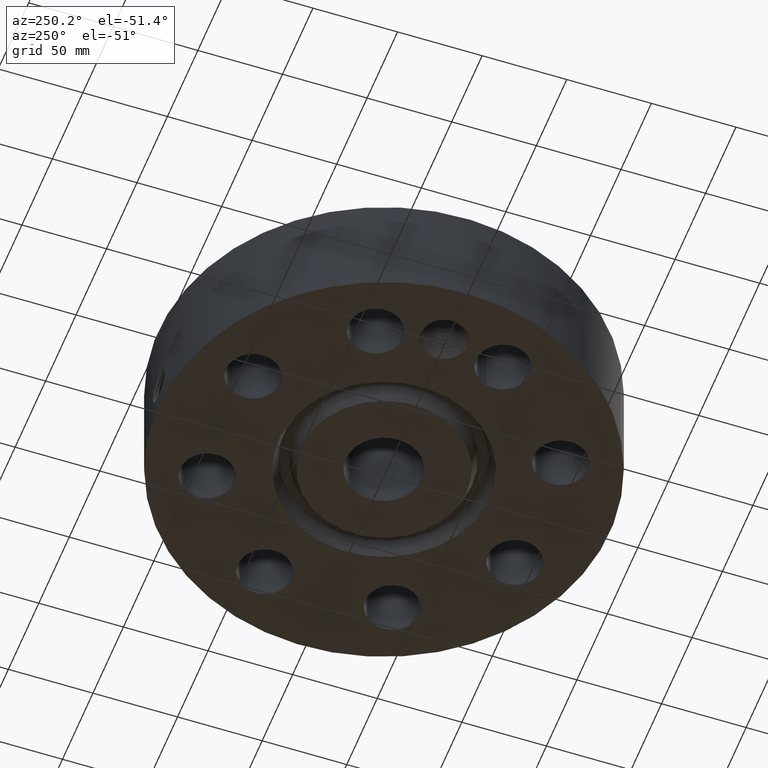
[diagram: clean part render]
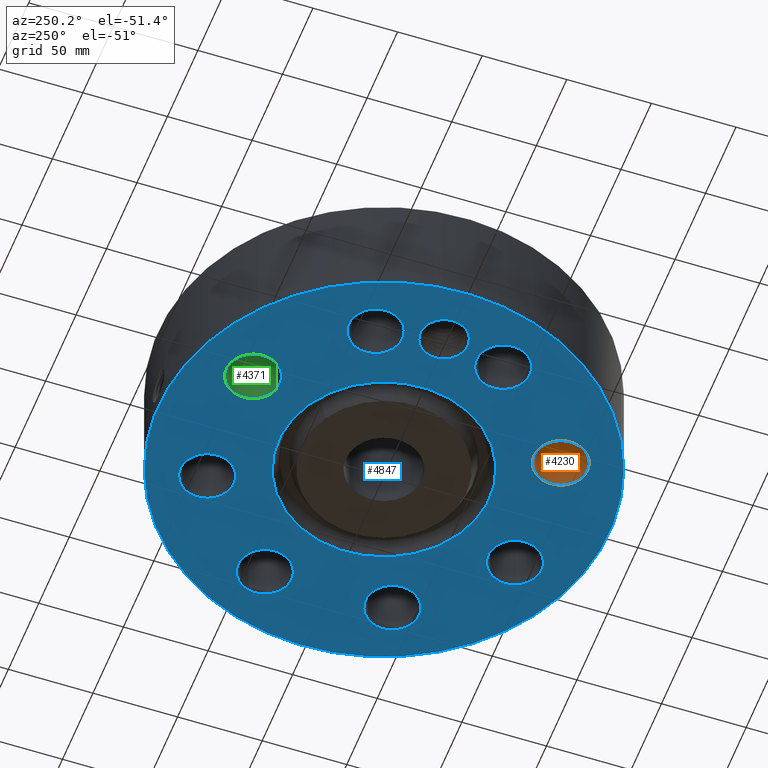
[diagram: same view with three faces highlighted in distinct colors, each labeled with its STEP entity id]
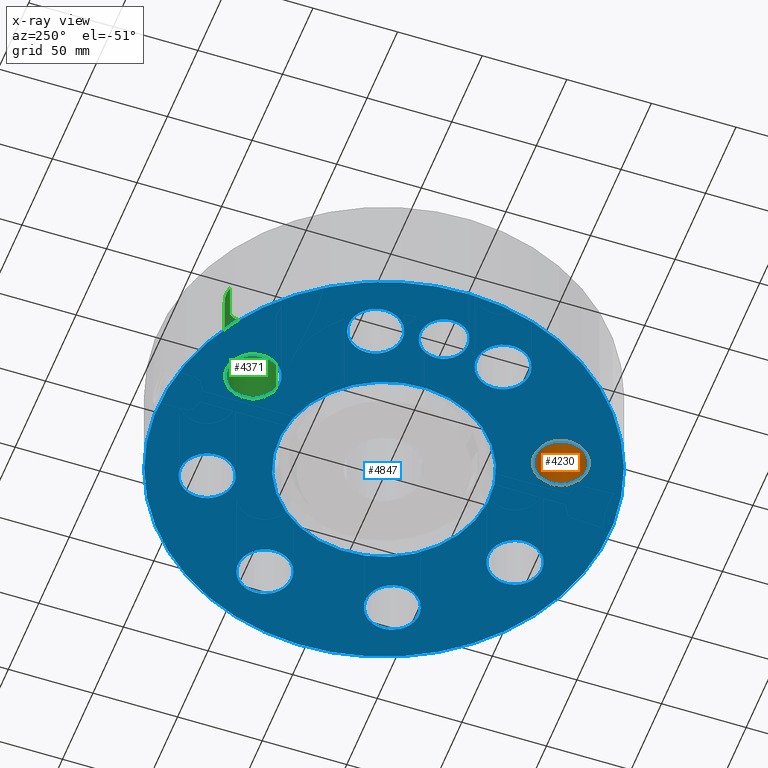
[diagram: x-ray of the same camera — body ghosted, the three highlighted faces saturated]
A machine part, auxiliary view with three faces highlighted in distinct colors.
The next image is the same camera in x-ray (body ghosted, the three faces saturated) — at least one of them is partly hidden behind the body in this view.
Their STEP definitions:

[orange] entity #4230 — the highlighted cylindrical surface (edge-blend (fillet) strip) has radius 15.875 mm, axis along (0, -0, -1).
#3039=AXIS2_PLACEMENT_3D('Circle Axis2P3D',#3037,#3038,$) ;
#4203=AXIS2_PLACEMENT_3D('Cylinder Axis2P3D',#4200,#4201,#4202) ;
#4214=AXIS2_PLACEMENT_3D('Circle Axis2P3D',#4212,#4213,$) ;
#3032=CARTESIAN_POINT('Vertex',(-1.78253926205,-4.12852228968,2.62500000001)) ;
#3034=CARTESIAN_POINT('Vertex',(-1.18325733879,-3.03154408731,2.62500000001)) ;
#3037=CARTESIAN_POINT('Axis2P3D Location',(-1.48289830042,-3.5800331885,2.62500000001)) ;
#4200=CARTESIAN_POINT('Axis2P3D Location',(-1.48289830042,-3.5800331885,2.62106299214)) ;
#4205=CARTESIAN_POINT('Line Origine',(-1.18325733879,-3.03154408731,1.31250000001)) ;
#4209=CARTESIAN_POINT('Vertex',(-1.18325733879,-3.03154408731,0.)) ;
#4212=CARTESIAN_POINT('Axis2P3D Location',(-1.48289830042,-3.5800331885,0.)) ;
#4216=CARTESIAN_POINT('Vertex',(-1.78253926205,-4.12852228968,0.)) ;
#4219=CARTESIAN_POINT('Line Origine',(-1.78253926205,-4.12852228968,1.31250000001)) ;
#3038=DIRECTION('Axis2P3D Direction',(0.,0.,-0.0393700787402)) ;
#4201=DIRECTION('Axis2P3D Direction',(0.,-0.,-0.0393700787402)) ;
#4202=DIRECTION('Axis2P3D XDirection',(-0.0188750212049,-0.0345504945626,0.)) ;
#4206=DIRECTION('Vector Direction',(0.,0.,-0.0393700787402)) ;
#4213=DIRECTION('Axis2P3D Direction',(0.,-0.,-0.0393700787402)) ;
#4220=DIRECTION('Vector Direction',(0.,0.,-0.0393700787402)) ;
#4207=VECTOR('Line Direction',#4206,0.0393700787402) ;
#4221=VECTOR('Line Direction',#4220,0.0393700787402) ;
#4225=ORIENTED_EDGE('',*,*,#4211,.F.) ;
#4226=ORIENTED_EDGE('',*,*,#4218,.T.) ;
#4227=ORIENTED_EDGE('',*,*,#4223,.T.) ;
#4228=ORIENTED_EDGE('',*,*,#3041,.F.) ;
#4230=ADVANCED_FACE('PartBody',(#4229),#4204,.F.) ;
#3040=CIRCLE('generated circle',#3039,0.625000000002) ;
#4215=CIRCLE('generated circle',#4214,0.625000000002) ;
#4204=CYLINDRICAL_SURFACE('generated cylinder',#4203,0.625000000002) ;
#3041=EDGE_CURVE('',#3035,#3033,#3040,.T.) ;
#4211=EDGE_CURVE('',#4210,#3035,#4208,.F.) ;
#4218=EDGE_CURVE('',#4210,#4217,#4215,.T.) ;
#4223=EDGE_CURVE('',#4217,#3033,#4222,.F.) ;
#4224=EDGE_LOOP('',(#4225,#4226,#4227,#4228)) ;
#4229=FACE_OUTER_BOUND('',#4224,.T.) ;
#4208=LINE('Line',#4205,#4207) ;
#4222=LINE('Line',#4219,#4221) ;
#3033=VERTEX_POINT('',#3032) ;
#3035=VERTEX_POINT('',#3034) ;
#4210=VERTEX_POINT('',#4209) ;
#4217=VERTEX_POINT('',#4216) ;

[blue] entity #4847 — the highlighted planar face has unit normal (0, 0, -1).
#598=AXIS2_PLACEMENT_3D('Plane Axis2P3D',#595,#596,#597) ;
#3476=AXIS2_PLACEMENT_3D('Circle Axis2P3D',#3474,#3475,$) ;
#3502=AXIS2_PLACEMENT_3D('Circle Axis2P3D',#3500,#3501,$) ;
#3775=AXIS2_PLACEMENT_3D('Circle Axis2P3D',#3773,#3774,$) ;
#3887=AXIS2_PLACEMENT_3D('Circle Axis2P3D',#3885,#3886,$) ;
#4128=AXIS2_PLACEMENT_3D('Circle Axis2P3D',#4126,#4127,$) ;
#4147=AXIS2_PLACEMENT_3D('Circle Axis2P3D',#4145,#4146,$) ;
#4171=AXIS2_PLACEMENT_3D('Circle Axis2P3D',#4169,#4170,$) ;
#4190=AXIS2_PLACEMENT_3D('Circle Axis2P3D',#4188,#4189,$) ;
#4214=AXIS2_PLACEMENT_3D('Circle Axis2P3D',#4212,#4213,$) ;
#4233=AXIS2_PLACEMENT_3D('Circle Axis2P3D',#4231,#4232,$) ;
#4257=AXIS2_PLACEMENT_3D('Circle Axis2P3D',#4255,#4256,$) ;
#4276=AXIS2_PLACEMENT_3D('Circle Axis2P3D',#4274,#4275,$) ;
#4300=AXIS2_PLACEMENT_3D('Circle Axis2P3D',#4298,#4299,$) ;
#4319=AXIS2_PLACEMENT_3D('Circle Axis2P3D',#4317,#4318,$) ;
#4343=AXIS2_PLACEMENT_3D('Circle Axis2P3D',#4341,#4342,$) ;
#4362=AXIS2_PLACEMENT_3D('Circle Axis2P3D',#4360,#4361,$) ;
#4386=AXIS2_PLACEMENT_3D('Circle Axis2P3D',#4384,#4385,$) ;
#4405=AXIS2_PLACEMENT_3D('Circle Axis2P3D',#4403,#4404,$) ;
#4429=AXIS2_PLACEMENT_3D('Circle Axis2P3D',#4427,#4428,$) ;
#4448=AXIS2_PLACEMENT_3D('Circle Axis2P3D',#4446,#4447,$) ;
#4759=AXIS2_PLACEMENT_3D('Circle Axis2P3D',#4757,#4758,$) ;
#4768=AXIS2_PLACEMENT_3D('Circle Axis2P3D',#4766,#4767,$) ;
#4775=AXIS2_PLACEMENT_3D('Circle Axis2P3D',#4773,#4774,$) ;
#595=CARTESIAN_POINT('Axis2P3D Location',(0.,0.885500000004,0.)) ;
#3474=CARTESIAN_POINT('Axis2P3D Location',(0.,0.,0.)) ;
#3478=CARTESIAN_POINT('Vertex',(-1.1760308462,2.15271002433,0.)) ;
#3480=CARTESIAN_POINT('Vertex',(1.1760308462,-2.15271002433,0.)) ;
#3500=CARTESIAN_POINT('Axis2P3D Location',(0.,0.,0.)) ;
#3773=CARTESIAN_POINT('Axis2P3D Location',(0.,0.,5.59482469102E-016)) ;
#3777=CARTESIAN_POINT('Vertex',(-2.51698407768,-4.60730844994,5.59482469102E-016)) ;
#3779=CARTESIAN_POINT('Vertex',(2.51698407768,4.60730844994,5.59482469102E-016)) ;
#3885=CARTESIAN_POINT('Axis2P3D Location',(0.,0.,5.59482469102E-016)) ;
#4123=CARTESIAN_POINT('Vertex',(4.12852228968,-1.78253926205,0.)) ;
#4126=CARTESIAN_POINT('Axis2P3D Location',(3.5800331885,-1.48289830042,0.)) ;
#4130=CARTESIAN_POINT('Vertex',(3.03154408731,-1.18325733879,0.)) ;
#4145=CARTESIAN_POINT('Axis2P3D Location',(3.5800331885,-1.48289830042,0.)) ;
#4166=CARTESIAN_POINT('Vertex',(1.30693609346,-2.98031466975,0.)) ;
#4169=CARTESIAN_POINT('Axis2P3D Location',(1.48289830042,-3.5800331885,0.)) ;
#4173=CARTESIAN_POINT('Vertex',(1.65886050739,-4.17975170724,0.)) ;
#4188=CARTESIAN_POINT('Axis2P3D Location',(1.48289830042,-3.5800331885,0.)) ;
#4209=CARTESIAN_POINT('Vertex',(-1.18325733879,-3.03154408731,0.)) ;
#4212=CARTESIAN_POINT('Axis2P3D Location',(-1.48289830042,-3.5800331885,0.)) ;
#4216=CARTESIAN_POINT('Vertex',(-1.78253926205,-4.12852228968,0.)) ;
#4231=CARTESIAN_POINT('Axis2P3D Location',(-1.48289830042,-3.5800331885,0.)) ;
#4252=CARTESIAN_POINT('Vertex',(-2.98031466975,-1.30693609346,0.)) ;
#4255=CARTESIAN_POINT('Axis2P3D Location',(-3.5800331885,-1.48289830042,0.)) ;
#4259=CARTESIAN_POINT('Vertex',(-4.17975170724,-1.65886050739,0.)) ;
#4274=CARTESIAN_POINT('Axis2P3D Location',(-3.5800331885,-1.48289830042,0.)) ;
#4295=CARTESIAN_POINT('Vertex',(-3.03154408731,1.18325733879,0.)) ;
#4298=CARTESIAN_POINT('Axis2P3D Location',(-3.5800331885,1.48289830042,0.)) ;
#4302=CARTESIAN_POINT('Vertex',(-4.12852228968,1.78253926205,0.)) ;
#4317=CARTESIAN_POINT('Axis2P3D Location',(-3.5800331885,1.48289830042,0.)) ;
#4338=CARTESIAN_POINT('Vertex',(-1.30693609346,2.98031466975,0.)) ;
#4341=CARTESIAN_POINT('Axis2P3D Location',(-1.48289830042,3.5800331885,0.)) ;
#4345=CARTESIAN_POINT('Vertex',(-1.65886050739,4.17975170724,0.)) ;
#4360=CARTESIAN_POINT('Axis2P3D Location',(-1.48289830042,3.5800331885,0.)) ;
#4381=CARTESIAN_POINT('Vertex',(1.18325733879,3.03154408731,0.)) ;
#4384=CARTESIAN_POINT('Axis2P3D Location',(1.48289830042,3.5800331885,0.)) ;
#4388=CARTESIAN_POINT('Vertex',(1.78253926205,4.12852228968,0.)) ;
#4403=CARTESIAN_POINT('Axis2P3D Location',(1.48289830042,3.5800331885,0.)) ;
#4424=CARTESIAN_POINT('Vertex',(2.98031466975,1.30693609346,0.)) ;
#4427=CARTESIAN_POINT('Axis2P3D Location',(3.5800331885,1.48289830042,0.)) ;
#4431=CARTESIAN_POINT('Vertex',(4.17975170724,1.65886050739,0.)) ;
#4446=CARTESIAN_POINT('Axis2P3D Location',(3.5800331885,1.48289830042,0.)) ;
#4757=CARTESIAN_POINT('Axis2P3D Location',(-3.87500000002,0.,0.)) ;
#4761=CARTESIAN_POINT('Vertex',(-3.39039890934,-0.264738782418,0.)) ;
#4763=CARTESIAN_POINT('Vertex',(-4.03666048539,-0.528006370674,0.)) ;
#4766=CARTESIAN_POINT('Axis2P3D Location',(-3.87500000002,0.,0.)) ;
#4770=CARTESIAN_POINT('Vertex',(-4.35960109069,0.264738782418,0.)) ;
#4773=CARTESIAN_POINT('Axis2P3D Location',(-3.87500000002,0.,0.)) ;
#4777=CARTESIAN_POINT('Vertex',(-4.39054287411,-0.197839290774,0.)) ;
#4781=CARTESIAN_POINT('Control Point',(-4.25873893829,-0.411279715125,0.)) ;
#4782=CARTESIAN_POINT('Control Point',(-4.29447315292,-0.375134261766,0.)) ;
#4783=CARTESIAN_POINT('Control Point',(-4.32604231411,-0.335029333311,0.)) ;
#4784=CARTESIAN_POINT('Control Point',(-4.35285073847,-0.291588209153,0.)) ;
#4785=CARTESIAN_POINT('Control Point',(-4.37443908824,-0.245581511573,0.)) ;
#4786=CARTESIAN_POINT('Control Point',(-4.39054287411,-0.197839290774,0.)) ;
#4787=CARTESIAN_POINT('Vertex',(-4.25873893829,-0.411279715124,5.46369598733E-018)) ;
#4791=CARTESIAN_POINT('Control Point',(-4.25873893829,-0.411279715124,0.)) ;
#4792=CARTESIAN_POINT('Control Point',(-4.23660972527,-0.430316579456,0.)) ;
#4793=CARTESIAN_POINT('Control Point',(-4.21327048844,-0.447894499338,0.)) ;
#4794=CARTESIAN_POINT('Control Point',(-4.18884684207,-0.463908306157,0.)) ;
#4795=CARTESIAN_POINT('Control Point',(-4.14656980329,-0.487840484302,0.)) ;
#4796=CARTESIAN_POINT('Control Point',(-4.10209008496,-0.506985027487,0.)) ;
#4797=CARTESIAN_POINT('Control Point',(-4.08399184482,-0.513855414295,0.)) ;
#4798=CARTESIAN_POINT('Control Point',(-4.06358179872,-0.520600614838,0.)) ;
#4799=CARTESIAN_POINT('Control Point',(-4.04291081313,-0.526337305246,0.)) ;
#4800=CARTESIAN_POINT('Control Point',(-4.04082985076,-0.526903895452,0.)) ;
#4801=CARTESIAN_POINT('Control Point',(-4.03874638559,-0.527460255935,0.)) ;
#4802=CARTESIAN_POINT('Control Point',(-4.03666048539,-0.528006370674,0.)) ;
#596=DIRECTION('Axis2P3D Direction',(0.,0.,-0.0393700787402)) ;
#597=DIRECTION('Axis2P3D XDirection',(0.0393700787402,0.,0.)) ;
#3475=DIRECTION('Axis2P3D Direction',(0.,0.,-0.0393700787402)) ;
#3501=DIRECTION('Axis2P3D Direction',(0.,0.,-0.0393700787402)) ;
#3774=DIRECTION('Axis2P3D Direction',(0.,0.,-0.0393700787402)) ;
#3886=DIRECTION('Axis2P3D Direction',(0.,0.,-0.0393700787402)) ;
#4127=DIRECTION('Axis2P3D Direction',(0.,-0.,-0.0393700787402)) ;
#4146=DIRECTION('Axis2P3D Direction',(0.,-0.,-0.0393700787402)) ;
#4170=DIRECTION('Axis2P3D Direction',(0.,-0.,-0.0393700787402)) ;
#4189=DIRECTION('Axis2P3D Direction',(0.,-0.,-0.0393700787402)) ;
#4213=DIRECTION('Axis2P3D Direction',(0.,-0.,-0.0393700787402)) ;
#4232=DIRECTION('Axis2P3D Direction',(0.,-0.,-0.0393700787402)) ;
#4256=DIRECTION('Axis2P3D Direction',(-0.,0.,-0.0393700787402)) ;
#4275=DIRECTION('Axis2P3D Direction',(-0.,0.,-0.0393700787402)) ;
#4299=DIRECTION('Axis2P3D Direction',(-0.,0.,-0.0393700787402)) ;
#4318=DIRECTION('Axis2P3D Direction',(-0.,0.,-0.0393700787402)) ;
#4342=DIRECTION('Axis2P3D Direction',(0.,0.,-0.0393700787402)) ;
#4361=DIRECTION('Axis2P3D Direction',(0.,0.,-0.0393700787402)) ;
#4385=DIRECTION('Axis2P3D Direction',(0.,0.,-0.0393700787402)) ;
#4404=DIRECTION('Axis2P3D Direction',(0.,0.,-0.0393700787402)) ;
#4428=DIRECTION('Axis2P3D Direction',(0.,0.,-0.0393700787402)) ;
#4447=DIRECTION('Axis2P3D Direction',(0.,0.,-0.0393700787402)) ;
#4758=DIRECTION('Axis2P3D Direction',(0.,0.,-0.0393700787402)) ;
#4767=DIRECTION('Axis2P3D Direction',(0.,0.,-0.0393700787402)) ;
#4774=DIRECTION('Axis2P3D Direction',(0.,0.,-0.0393700787402)) ;
#4754=ORIENTED_EDGE('',*,*,#3781,.T.) ;
#4755=ORIENTED_EDGE('',*,*,#3889,.T.) ;
#4805=ORIENTED_EDGE('',*,*,#4765,.F.) ;
#4806=ORIENTED_EDGE('',*,*,#4772,.F.) ;
#4807=ORIENTED_EDGE('',*,*,#4779,.F.) ;
#4808=ORIENTED_EDGE('',*,*,#4789,.F.) ;
#4809=ORIENTED_EDGE('',*,*,#4803,.T.) ;
#4812=ORIENTED_EDGE('',*,*,#4132,.F.) ;
#4813=ORIENTED_EDGE('',*,*,#4149,.F.) ;
#4816=ORIENTED_EDGE('',*,*,#4175,.F.) ;
#4817=ORIENTED_EDGE('',*,*,#4192,.F.) ;
#4820=ORIENTED_EDGE('',*,*,#4218,.F.) ;
#4821=ORIENTED_EDGE('',*,*,#4235,.F.) ;
#4824=ORIENTED_EDGE('',*,*,#4261,.F.) ;
#4825=ORIENTED_EDGE('',*,*,#4278,.F.) ;
#4828=ORIENTED_EDGE('',*,*,#4304,.F.) ;
#4829=ORIENTED_EDGE('',*,*,#4321,.F.) ;
#4832=ORIENTED_EDGE('',*,*,#4347,.F.) ;
#4833=ORIENTED_EDGE('',*,*,#4364,.F.) ;
#4836=ORIENTED_EDGE('',*,*,#4390,.F.) ;
#4837=ORIENTED_EDGE('',*,*,#4407,.F.) ;
#4840=ORIENTED_EDGE('',*,*,#4433,.F.) ;
#4841=ORIENTED_EDGE('',*,*,#4450,.F.) ;
#4844=ORIENTED_EDGE('',*,*,#3504,.F.) ;
#4845=ORIENTED_EDGE('',*,*,#3482,.F.) ;
#4810=FACE_BOUND('',#4804,.T.) ;
#4814=FACE_BOUND('',#4811,.T.) ;
#4818=FACE_BOUND('',#4815,.T.) ;
#4822=FACE_BOUND('',#4819,.T.) ;
#4826=FACE_BOUND('',#4823,.T.) ;
#4830=FACE_BOUND('',#4827,.T.) ;
#4834=FACE_BOUND('',#4831,.T.) ;
#4838=FACE_BOUND('',#4835,.T.) ;
#4842=FACE_BOUND('',#4839,.T.) ;
#4846=FACE_BOUND('',#4843,.T.) ;
#4847=ADVANCED_FACE('PartBody',(#4756,#4810,#4814,#4818,#4822,#4826,#4830,#4834,#4838,#4842,#4846),#599,.T.) ;
#4780=B_SPLINE_CURVE_WITH_KNOTS('',5,(#4781,#4782,#4783,#4784,#4785,#4786),.UNSPECIFIED.,.F.,.U.,(6,6),(0.,8.85653265535),.UNSPECIFIED.) ;
#4790=B_SPLINE_CURVE_WITH_KNOTS('',5,(#4791,#4792,#4793,#4794,#4795,#4796,#4797,#4798,#4799,#4800,#4801,#4802),.UNSPECIFIED.,.F.,.U.,(6,3,3,6),(0.,5.08641647489,8.47691544538,8.85592580602),.UNSPECIFIED.) ;
#3477=CIRCLE('generated circle',#3476,2.45300000001) ;
#3503=CIRCLE('generated circle',#3502,2.45300000001) ;
#3776=CIRCLE('generated circle',#3775,5.25000000002) ;
#3888=CIRCLE('generated circle',#3887,5.25000000002) ;
#4129=CIRCLE('generated circle',#4128,0.625000000002) ;
#4148=CIRCLE('generated circle',#4147,0.625000000002) ;
#4172=CIRCLE('generated circle',#4171,0.625000000003) ;
#4191=CIRCLE('generated circle',#4190,0.625000000003) ;
#4215=CIRCLE('generated circle',#4214,0.625000000002) ;
#4234=CIRCLE('generated circle',#4233,0.625000000002) ;
#4258=CIRCLE('generated circle',#4257,0.625000000003) ;
#4277=CIRCLE('generated circle',#4276,0.625000000003) ;
#4301=CIRCLE('generated circle',#4300,0.625000000002) ;
#4320=CIRCLE('generated circle',#4319,0.625000000002) ;
#4344=CIRCLE('generated circle',#4343,0.625000000003) ;
#4363=CIRCLE('generated circle',#4362,0.625000000003) ;
#4387=CIRCLE('generated circle',#4386,0.625000000002) ;
#4406=CIRCLE('generated circle',#4405,0.625000000002) ;
#4430=CIRCLE('generated circle',#4429,0.625000000003) ;
#4449=CIRCLE('generated circle',#4448,0.625000000003) ;
#4760=CIRCLE('generated circle',#4759,0.552200000002) ;
#4769=CIRCLE('generated circle',#4768,0.552200000002) ;
#4776=CIRCLE('generated circle',#4775,0.552200000002) ;
#3482=EDGE_CURVE('',#3479,#3481,#3477,.T.) ;
#3504=EDGE_CURVE('',#3481,#3479,#3503,.T.) ;
#3781=EDGE_CURVE('',#3778,#3780,#3776,.T.) ;
#3889=EDGE_CURVE('',#3780,#3778,#3888,.T.) ;
#4132=EDGE_CURVE('',#4124,#4131,#4129,.T.) ;
#4149=EDGE_CURVE('',#4131,#4124,#4148,.T.) ;
#4175=EDGE_CURVE('',#4167,#4174,#4172,.T.) ;
#4192=EDGE_CURVE('',#4174,#4167,#4191,.T.) ;
#4218=EDGE_CURVE('',#4210,#4217,#4215,.T.) ;
#4235=EDGE_CURVE('',#4217,#4210,#4234,.T.) ;
#4261=EDGE_CURVE('',#4253,#4260,#4258,.T.) ;
#4278=EDGE_CURVE('',#4260,#4253,#4277,.T.) ;
#4304=EDGE_CURVE('',#4296,#4303,#4301,.T.) ;
#4321=EDGE_CURVE('',#4303,#4296,#4320,.T.) ;
#4347=EDGE_CURVE('',#4339,#4346,#4344,.T.) ;
#4364=EDGE_CURVE('',#4346,#4339,#4363,.T.) ;
#4390=EDGE_CURVE('',#4382,#4389,#4387,.T.) ;
#4407=EDGE_CURVE('',#4389,#4382,#4406,.T.) ;
#4433=EDGE_CURVE('',#4425,#4432,#4430,.T.) ;
#4450=EDGE_CURVE('',#4432,#4425,#4449,.T.) ;
#4765=EDGE_CURVE('',#4762,#4764,#4760,.T.) ;
#4772=EDGE_CURVE('',#4771,#4762,#4769,.T.) ;
#4779=EDGE_CURVE('',#4778,#4771,#4776,.T.) ;
#4789=EDGE_CURVE('',#4788,#4778,#4780,.T.) ;
#4803=EDGE_CURVE('',#4788,#4764,#4790,.T.) ;
#4753=EDGE_LOOP('',(#4754,#4755)) ;
#4804=EDGE_LOOP('',(#4805,#4806,#4807,#4808,#4809)) ;
#4811=EDGE_LOOP('',(#4812,#4813)) ;
#4815=EDGE_LOOP('',(#4816,#4817)) ;
#4819=EDGE_LOOP('',(#4820,#4821)) ;
#4823=EDGE_LOOP('',(#4824,#4825)) ;
#4827=EDGE_LOOP('',(#4828,#4829)) ;
#4831=EDGE_LOOP('',(#4832,#4833)) ;
#4835=EDGE_LOOP('',(#4836,#4837)) ;
#4839=EDGE_LOOP('',(#4840,#4841)) ;
#4843=EDGE_LOOP('',(#4844,#4845)) ;
#4756=FACE_OUTER_BOUND('',#4753,.T.) ;
#599=PLANE('',#598) ;
#3479=VERTEX_POINT('',#3478) ;
#3481=VERTEX_POINT('',#3480) ;
#3778=VERTEX_POINT('',#3777) ;
#3780=VERTEX_POINT('',#3779) ;
#4124=VERTEX_POINT('',#4123) ;
#4131=VERTEX_POINT('',#4130) ;
#4167=VERTEX_POINT('',#4166) ;
#4174=VERTEX_POINT('',#4173) ;
#4210=VERTEX_POINT('',#4209) ;
#4217=VERTEX_POINT('',#4216) ;
#4253=VERTEX_POINT('',#4252) ;
#4260=VERTEX_POINT('',#4259) ;
#4296=VERTEX_POINT('',#4295) ;
#4303=VERTEX_POINT('',#4302) ;
#4339=VERTEX_POINT('',#4338) ;
#4346=VERTEX_POINT('',#4345) ;
#4382=VERTEX_POINT('',#4381) ;
#4389=VERTEX_POINT('',#4388) ;
#4425=VERTEX_POINT('',#4424) ;
#4432=VERTEX_POINT('',#4431) ;
#4762=VERTEX_POINT('',#4761) ;
#4764=VERTEX_POINT('',#4763) ;
#4771=VERTEX_POINT('',#4770) ;
#4778=VERTEX_POINT('',#4777) ;
#4788=VERTEX_POINT('',#4787) ;

[green] entity #4371 — the highlighted cylindrical surface (edge-blend (fillet) strip) has radius 15.875 mm, axis along (0, 0, -1).
#3084=AXIS2_PLACEMENT_3D('Circle Axis2P3D',#3082,#3083,$) ;
#4332=AXIS2_PLACEMENT_3D('Cylinder Axis2P3D',#4329,#4330,#4331) ;
#4362=AXIS2_PLACEMENT_3D('Circle Axis2P3D',#4360,#4361,$) ;
#3082=CARTESIAN_POINT('Axis2P3D Location',(-1.48289830042,3.5800331885,2.62500000001)) ;
#3086=CARTESIAN_POINT('Vertex',(-1.65886050739,4.17975170724,2.62500000001)) ;
#3088=CARTESIAN_POINT('Vertex',(-1.30693609346,2.98031466975,2.62500000001)) ;
#4329=CARTESIAN_POINT('Axis2P3D Location',(-1.48289830042,3.5800331885,2.62106299214)) ;
#4334=CARTESIAN_POINT('Line Origine',(-1.30693609346,2.98031466975,1.31250000001)) ;
#4338=CARTESIAN_POINT('Vertex',(-1.30693609346,2.98031466975,0.)) ;
#4345=CARTESIAN_POINT('Vertex',(-1.65886050739,4.17975170724,0.)) ;
#4348=CARTESIAN_POINT('Line Origine',(-1.65886050739,4.17975170724,1.31250000001)) ;
#4360=CARTESIAN_POINT('Axis2P3D Location',(-1.48289830042,3.5800331885,0.)) ;
#3083=DIRECTION('Axis2P3D Direction',(0.,0.,-0.0393700787402)) ;
#4330=DIRECTION('Axis2P3D Direction',(0.,0.,-0.0393700787402)) ;
#4331=DIRECTION('Axis2P3D XDirection',(-0.0110842335096,0.0377775444876,0.)) ;
#4335=DIRECTION('Vector Direction',(0.,0.,-0.0393700787402)) ;
#4349=DIRECTION('Vector Direction',(0.,0.,-0.0393700787402)) ;
#4361=DIRECTION('Axis2P3D Direction',(0.,0.,-0.0393700787402)) ;
#4336=VECTOR('Line Direction',#4335,0.0393700787402) ;
#4350=VECTOR('Line Direction',#4349,0.0393700787402) ;
#4366=ORIENTED_EDGE('',*,*,#4352,.F.) ;
#4367=ORIENTED_EDGE('',*,*,#4364,.T.) ;
#4368=ORIENTED_EDGE('',*,*,#4340,.T.) ;
#4369=ORIENTED_EDGE('',*,*,#3090,.F.) ;
#4371=ADVANCED_FACE('PartBody',(#4370),#4333,.F.) ;
#3085=CIRCLE('generated circle',#3084,0.625000000003) ;
#4363=CIRCLE('generated circle',#4362,0.625000000003) ;
#4333=CYLINDRICAL_SURFACE('generated cylinder',#4332,0.625000000003) ;
#3090=EDGE_CURVE('',#3087,#3089,#3085,.T.) ;
#4340=EDGE_CURVE('',#4339,#3089,#4337,.F.) ;
#4352=EDGE_CURVE('',#4346,#3087,#4351,.F.) ;
#4364=EDGE_CURVE('',#4346,#4339,#4363,.T.) ;
#4365=EDGE_LOOP('',(#4366,#4367,#4368,#4369)) ;
#4370=FACE_OUTER_BOUND('',#4365,.T.) ;
#4337=LINE('Line',#4334,#4336) ;
#4351=LINE('Line',#4348,#4350) ;
#3087=VERTEX_POINT('',#3086) ;
#3089=VERTEX_POINT('',#3088) ;
#4339=VERTEX_POINT('',#4338) ;
#4346=VERTEX_POINT('',#4345) ;